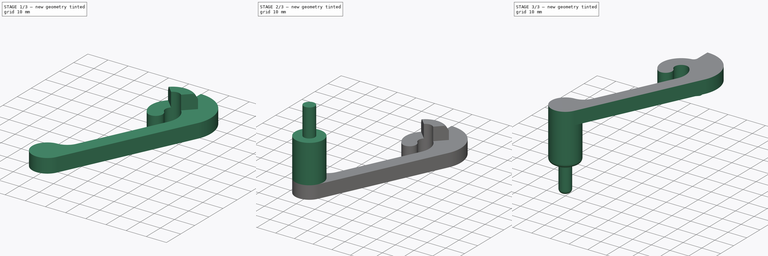
[diagram: build sequence overview — one tinted view per stage of 3, left to right]
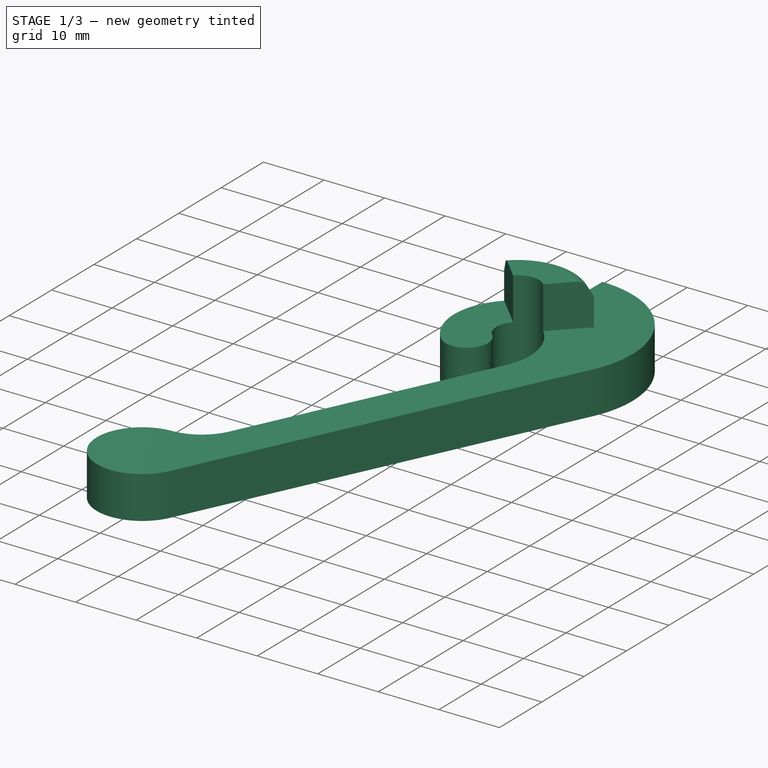
[diagram: stage 1 of 3 — iso view after this stage's code; geometry added in this stage tinted green]
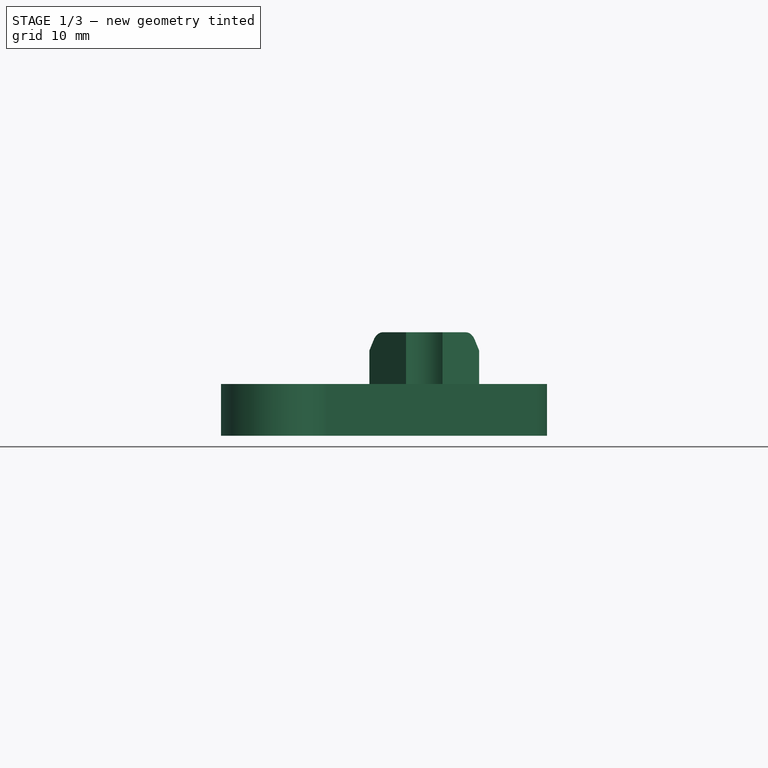
[diagram: stage 1 of 3 — front view after this stage's code; geometry added in this stage tinted green]
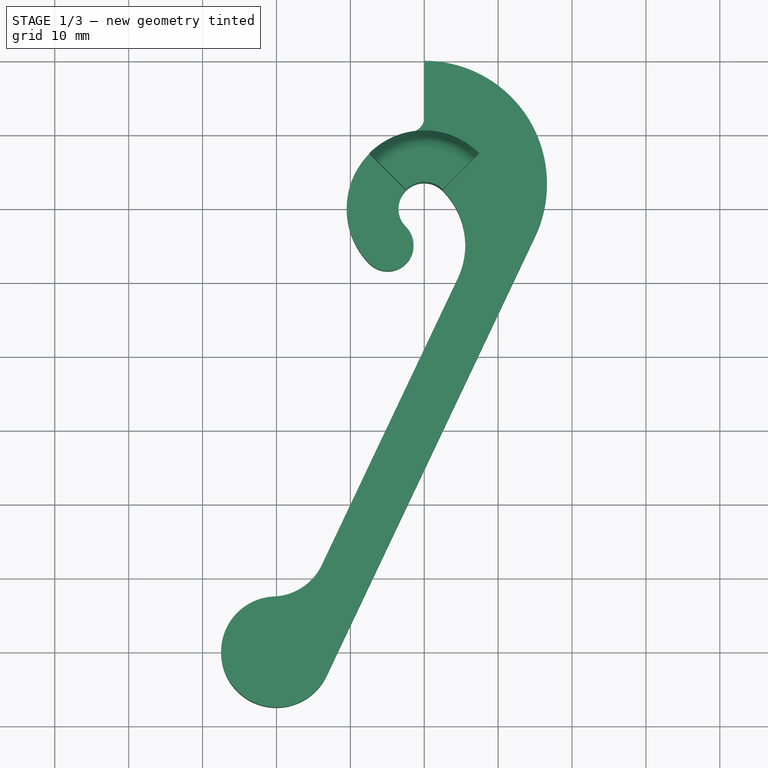
[diagram: stage 1 of 3 — top view after this stage's code; geometry added in this stage tinted green]
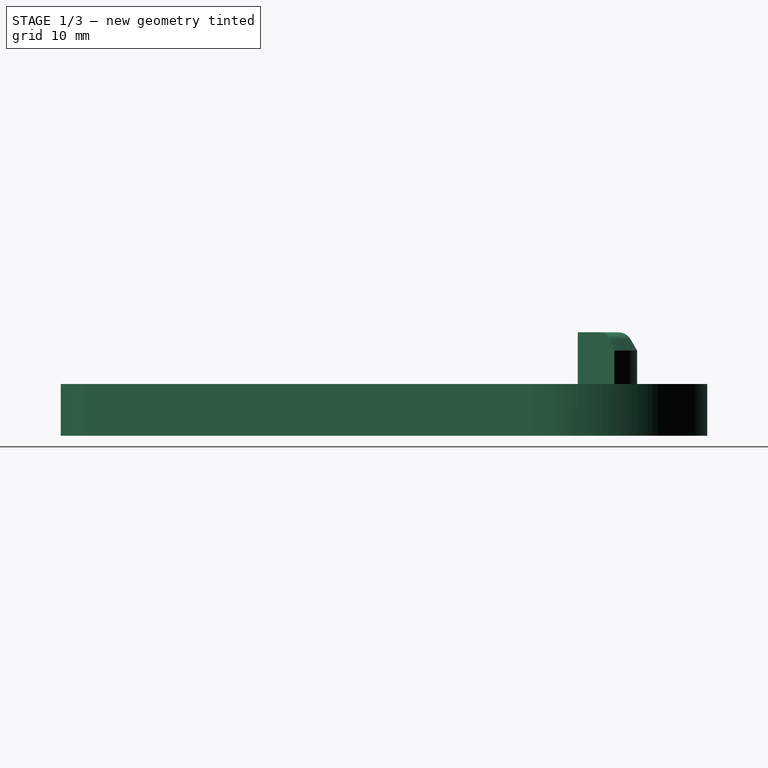
[diagram: stage 1 of 3 — right view after this stage's code; geometry added in this stage tinted green]
FCSTD DOCUMENT  (FreeCAD 0.18R16110 (Git))
Label: WireRackSpoolHangerL
License: All rights reserved
LicenseURL: http://en.wikipedia.org/wiki/All_rights_reserved
objects: Sketcher::SketchObject×4, PartDesign::Pad×3, PartDesign::Revolution×1, PartDesign::Fillet×1, PartDesign::Body×1, Part::Mirroring×1
note: 15 computed .brp shape members not serialized (recipe doc carries the construction recipe); baked Part::Feature solids carry a one-line shape summary decoded from their .brp

FEATURE [Sketcher::SketchObject] Sketch
  MapMode = 5
  Support = -> [XY_Plane]
  sketch-geometry (16):
    g0: ArcOfCircle CenterX=0 CenterY=0 CenterZ=0 NormalX=0 NormalY=0 NormalZ=1 AngleXU=0 Radius=3.5 StartAngle=0.785398 EndAngle=3.92699
    g1: LineSegment [constr] StartX=-2.47487 StartY=-2.47487 StartZ=0 EndX=2.47487 EndY=2.47487 EndZ=0
    g2: ArcOfCircle CenterX=-20 CenterY=-60 CenterZ=0 NormalX=0 NormalY=0 NormalZ=1 AngleXU=0 Radius=7.5 StartAngle=1.61331 EndAngle=5.84018
    g3: LineSegment [constr] StartX=-13.224 StartY=-63.2149 StartZ=0 EndX=-26.776 EndY=-56.7851 EndZ=0
    g4: ArcOfCircle CenterX=-4.94975 CenterY=-4.94975 CenterZ=0 NormalX=0 NormalY=0 NormalZ=1 AngleXU=0 Radius=3.5 StartAngle=3.92699 EndAngle=7.06858
    g5: LineSegment [constr] StartX=0 StartY=0 StartZ=0 EndX=-3.5 EndY=0 EndZ=0
    g6: ArcOfCircle CenterX=-4.94975 CenterY=-4.94975 CenterZ=0 NormalX=0 NormalY=0 NormalZ=1 AngleXU=0 Radius=10.5 StartAngle=5.84018 EndAngle=7.06858
    g7: LineSegment StartX=5.1e-15 StartY=12.339 StartZ=0 EndX=5.1e-15 EndY=20 EndZ=0
    g8: ArcOfCircle CenterX=0 CenterY=3.39496 CenterZ=0 NormalX=0 NormalY=0 NormalZ=1 AngleXU=0 Radius=16.605 StartAngle=5.84018 EndAngle=7.85398
    g9: LineSegment [constr] StartX=0 StartY=0 StartZ=0 EndX=-2.47487 EndY=2.47487 EndZ=0
    g10: LineSegment StartX=-13.224 StartY=-63.2149 StartZ=0 EndX=15.0021 EndY=-3.72283 EndZ=0
    g11: LineSegment [constr] StartX=4.53668 StartY=-9.4506 StartZ=0 EndX=10.861 EndY=-12.4512 EndZ=0
    g12: LineSegment StartX=4.53668 StartY=-9.4506 StartZ=0 EndX=-13.8615 EndY=-48.2285 EndZ=0
    g13: ArcOfCircle CenterX=-20.6376 CenterY=-45.0136 CenterZ=0 NormalX=0 NormalY=0 NormalZ=1 AngleXU=0 Radius=7.5 StartAngle=4.75491 EndAngle=5.84018
    g14: ArcOfCircle CenterX=0 CenterY=0 CenterZ=0 NormalX=0 NormalY=0 NormalZ=1 AngleXU=0 Radius=10.5 StartAngle=1.73149 EndAngle=3.92699
    g15: ArcOfCircle CenterX=-2 CenterY=12.339 CenterZ=0 NormalX=0 NormalY=0 NormalZ=1 AngleXU=0 Radius=2 StartAngle=4.87308 EndAngle=6.28319
  constraints (46):
    c: Coincident(g0,g-1)
    c: PointOnObject(g0,g1)
    c: DistanceX(g2,g0) = 20
    c: DistanceY(g2,g0) = 60
    c: Coincident(g3,g2)
    c: PointOnObject(g2,g3)
    c: Coincident(g5,g0)
    c: PointOnObject(g5,g0)
    c: Horizontal(g5)
    c: Coincident(g1,g0)
    c: Coincident(g1,g0)
    c: Angle(g-1,g1) = 0.785398
    c: Coincident(g6,g4)
    c: PointOnObject(g7,g-2)
    c: DistanceY(g0,g7) = 20
    c: Coincident(g9,g0)
    c: PointOnObject(g9,g0)
    c: Perpendicular(g1,g9)
    c: Distance(g3) = 15
    c: Distance(g1) = 7
    c: Coincident(g6,g0)
    c: Coincident(g4,g0)
    c: PointOnObject(g4,g1)
    c: Distance(g4,g0) = 7
    c: Tangent(g10,g8) = -1.5708
    c: Tangent(g10,g2) = -1.5708
    c: PointOnObject(g11,g10)
    c: Perpendicular(g6,g11)
    c: Perpendicular(g10,g11)
    c: Distance(g11) = 7
    c: Coincident(g6,g11)
    c: Coincident(g12,g6)
    c: Parallel(g12,g10)
    c: PointOnObject(g3,g2)
    c: Tangent(g13,g2) = 1.5708
    c: Tangent(g13,g12) = 1.5708
    c: Equal(g13,g2)
    c: Coincident(g14,g0)
    c: Coincident(g14,g4)
    c: Vertical(g7)
    c: Tangent(g7,g15) = -1.5708
    c: Tangent(g14,g15) = 1.5708
    c: Radius(g15) = 2
    c: PointOnObject(g4,g1)
    c: Coincident(g7,g8)
    c: PointOnObject(g8,g7)
FEATURE [PartDesign::Pad] Pad
  Length = 7
  Length2 = 100
  Profile = -> Sketch
  Type = 0
FEATURE [Sketcher::SketchObject] Sketch001
  MapMode = 5
  Support = -> [XY_Plane]
  sketch-geometry (1):
    g0: Circle CenterX=-20 CenterY=-60 CenterZ=0 NormalX=0 NormalY=0 NormalZ=1 AngleXU=0 Radius=7.5
  constraints (3):
    c: DistanceX(g0,g-1) = 20
    c: DistanceY(g0,g-1) = 60
    c: Radius(g0) = 7.5
FEATURE [Sketcher::SketchObject] Sketch002
  MapMode = 5
  Placement = pos=(0,0,0) rot=(0.57735,0.57735,0.57735;2.0944rad)
  Support = -> [YZ_Plane]
  sketch-geometry (8):
    g0: LineSegment StartX=3.5 StartY=0 StartZ=0 EndX=3.5 EndY=14 EndZ=0
    g1: LineSegment StartX=10.5 StartY=0 StartZ=0 EndX=10.5 EndY=11.5359 EndZ=0
    g2: LineSegment StartX=9.6547 StartY=13 StartZ=0 EndX=10.5 EndY=11.5359 EndZ=0
    g3: LineSegment StartX=3.5 StartY=14 StartZ=0 EndX=7.92265 EndY=14 EndZ=0
    g4: ArcOfCircle CenterX=7.92265 CenterY=12 CenterZ=0 NormalX=0 NormalY=0 NormalZ=1 AngleXU=0 Radius=2 StartAngle=0.523599 EndAngle=1.5708
    g5: LineSegment StartX=10.5 StartY=0 StartZ=0 EndX=3.5 EndY=0 EndZ=0
    g6: GeomPoint X=8.5 Y=15 Z=0
    g7: GeomPoint X=10.5 Y=7 Z=0
  constraints (22):
    c: Vertical(g1)
    c: Coincident(g2,g1)
    c: Angle(g2,g1) = 2.61799
    c: DistanceY(g0,g0) = 14
    c: Coincident(g3,g0)
    c: Horizontal(g3)
    c: Tangent(g4,g3) = 1.5708
    c: Tangent(g4,g2) = 1.5708
    c: Radius(g4) = 2
    c: Coincident(g5,g1)
    c: Coincident(g5,g0)
    c: Horizontal(g5)
    c: DistanceY(g-1,g0) = 0
    c: DistanceX(g-1,g1) = 10.5
    c: DistanceX(g-1,g0) = 3.5
    c: Vertical(g0)
    c: PointOnObject(g6,g2)
    c: DistanceY(g-1,g6) = 15
    c: PointOnObject(g7,g1)
    c: DistanceY(g1,g7) = 7
    c: DistanceY(g7,g0) = 7
    c: DistanceX(g0,g6) = 5
FEATURE [PartDesign::Revolution] Revolution
  Angle = 90
  Axis = (-2e-16,3e-16,1)
  Base = (0,0,0)
  BaseFeature = -> Pad
  Midplane = true
  Profile = -> Sketch002
  ReferenceAxis = -> Sketch002 [V_Axis]
  Reversed = true
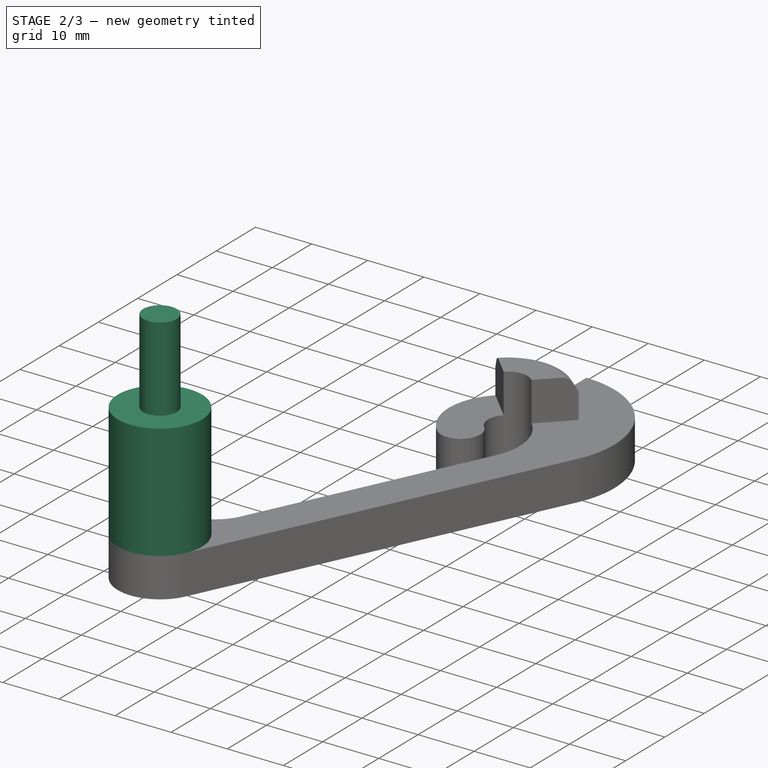
[diagram: stage 2 of 3 — iso view after this stage's code; geometry added in this stage tinted green]
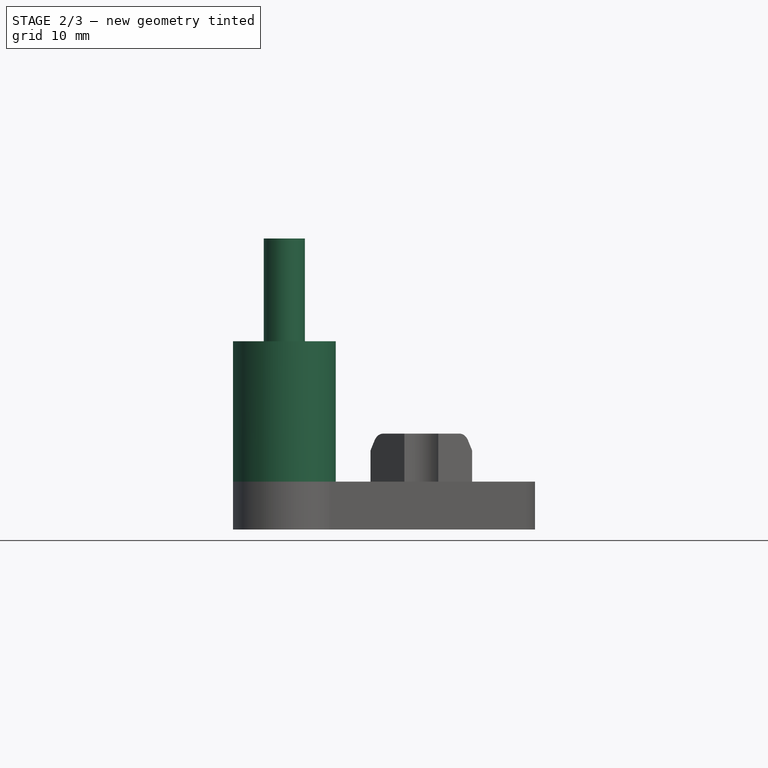
[diagram: stage 2 of 3 — front view after this stage's code; geometry added in this stage tinted green]
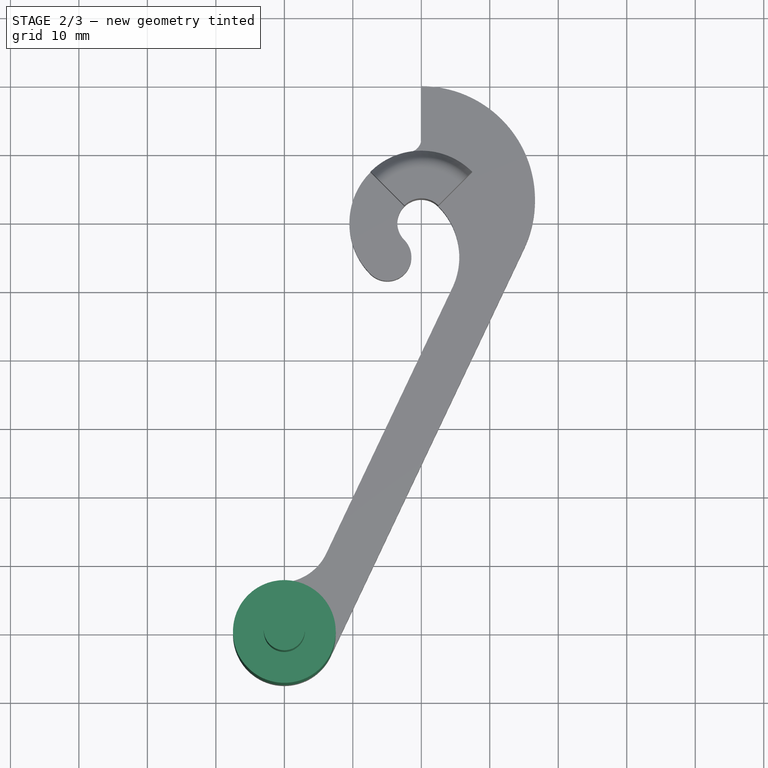
[diagram: stage 2 of 3 — top view after this stage's code; geometry added in this stage tinted green]
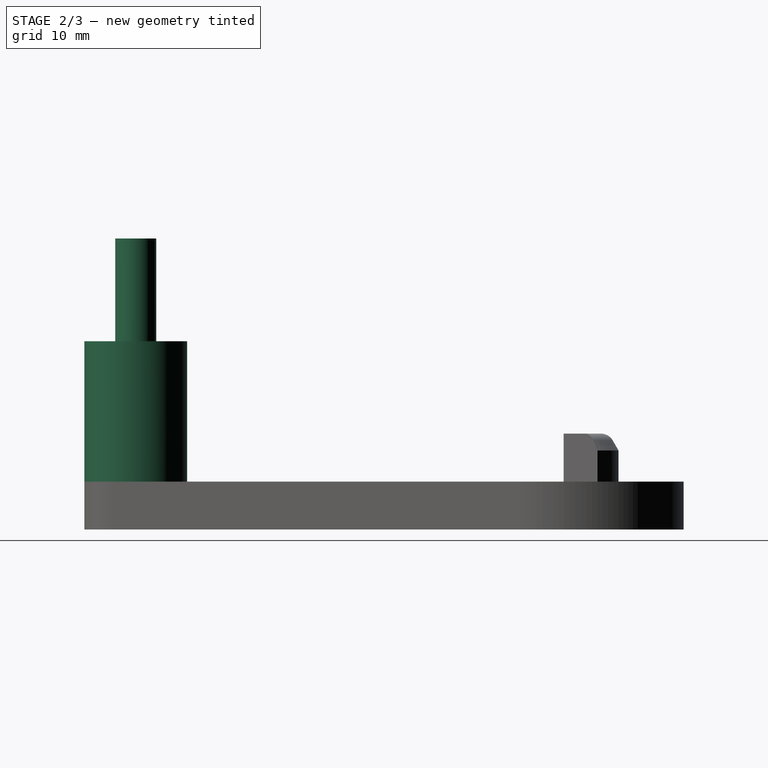
[diagram: stage 2 of 3 — right view after this stage's code; geometry added in this stage tinted green]
FEATURE [PartDesign::Pad] Pad001
  BaseFeature = -> Revolution
  Length = 27.5
  Length2 = 100
  Profile = -> Sketch001
  Type = 0
FEATURE [Sketcher::SketchObject] Sketch003
  MapMode = 5
  Placement = pos=(0,0,27.5) rot=(0,0,1;0rad)
  Support = -> [Pad001]
  sketch-geometry (1):
    g0: Circle CenterX=-20 CenterY=-60 CenterZ=0 NormalX=0 NormalY=0 NormalZ=1 AngleXU=0 Radius=3
  constraints (3):
    c: Radius(g0) = 3
    c: DistanceX(g0,g-1) = 20
    c: DistanceY(g0,g-1) = 60
FEATURE [PartDesign::Pad] Pad002
  BaseFeature = -> Pad001
  Length = 15
  Length2 = 100
  Profile = -> Sketch003
  Type = 0
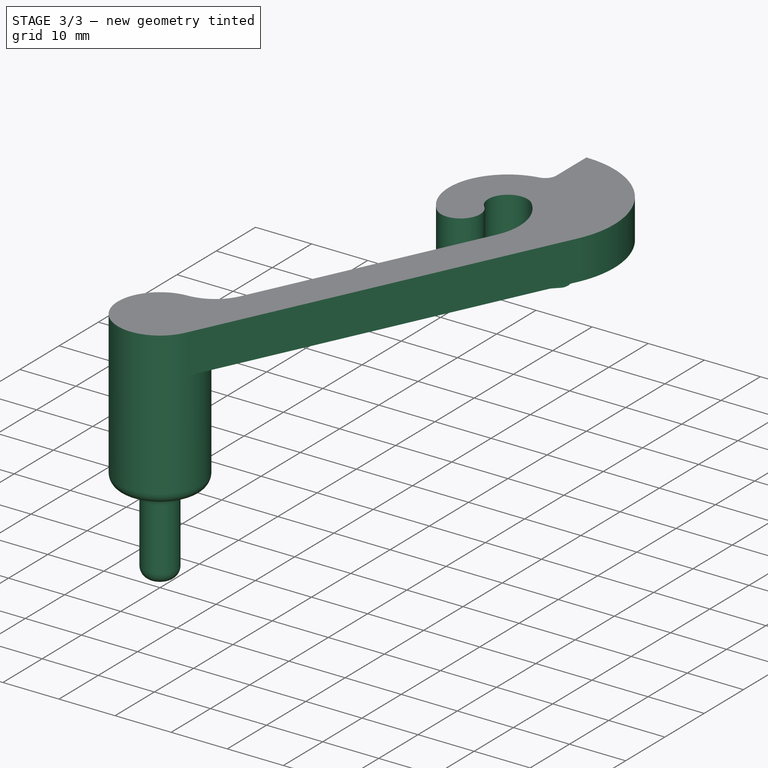
[diagram: stage 3 of 3 — iso view after this stage's code; geometry added in this stage tinted green]
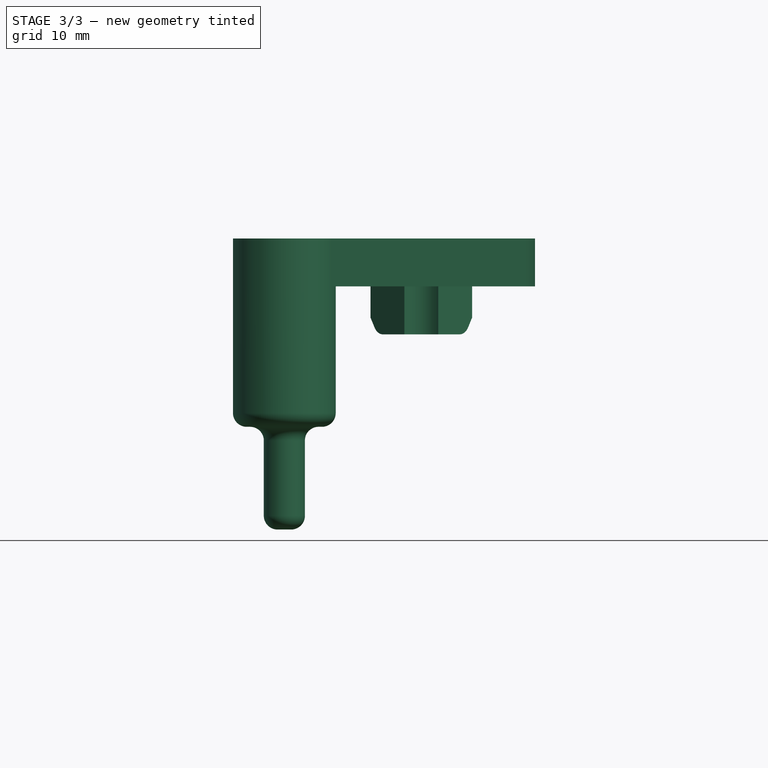
[diagram: stage 3 of 3 — front view after this stage's code; geometry added in this stage tinted green]
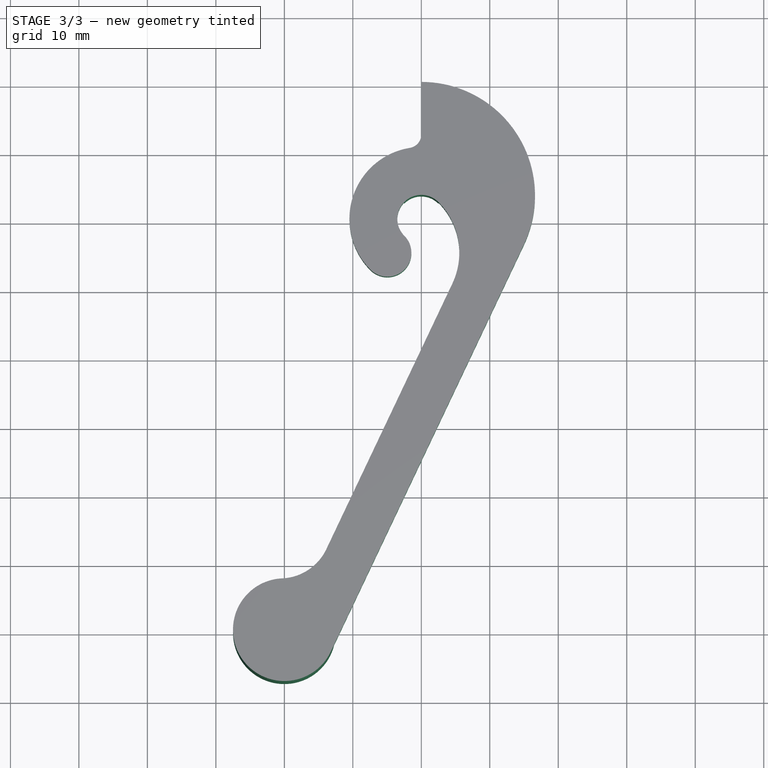
[diagram: stage 3 of 3 — top view after this stage's code; geometry added in this stage tinted green]
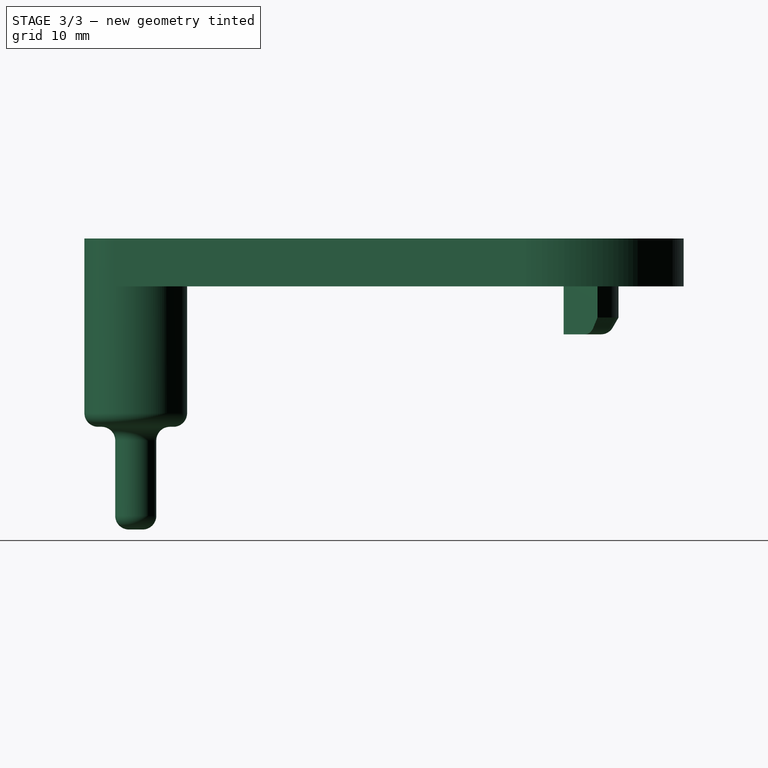
[diagram: stage 3 of 3 — right view after this stage's code; geometry added in this stage tinted green]
FEATURE [PartDesign::Fillet] Fillet
  Base = -> Pad002 [Edge68,Edge65,Edge46]
  BaseFeature = -> Pad002
  Radius = 2
FEATURE [PartDesign::Body] Body
  Group = -> [Sketch,Pad,Revolution,Sketch001,Pad001,Sketch002,Sketch003,Pad002,Fillet]
  Origin = -> Origin
  Tip = -> Fillet
FEATURE [Part::Mirroring] Part__Mirroring  label="Fillet (Mirror #1)"
  Base = (0,0,0)
  Normal = (0,0,1)
  Source = -> Fillet
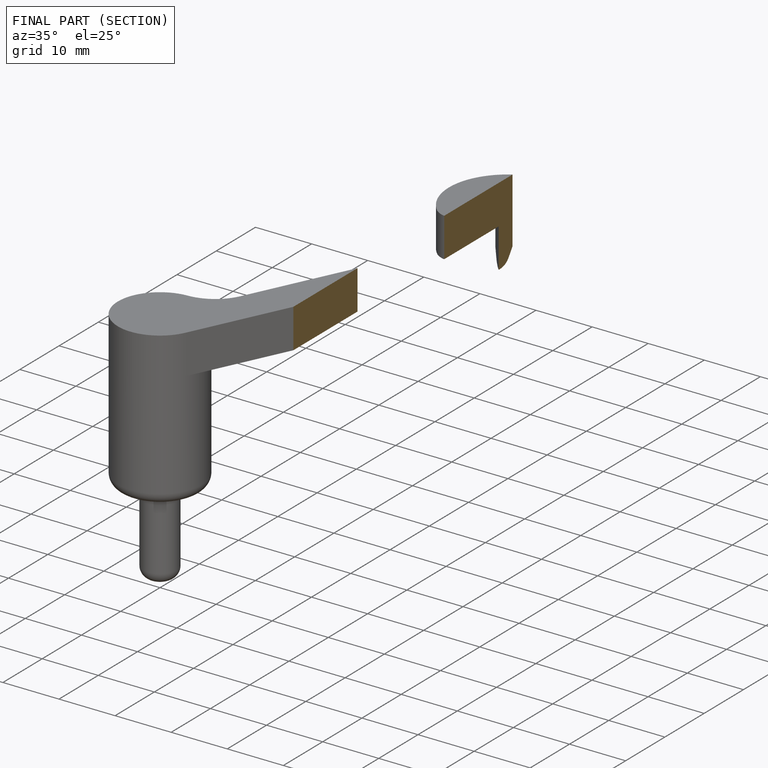
[diagram: finished part — half-section view (interior)]
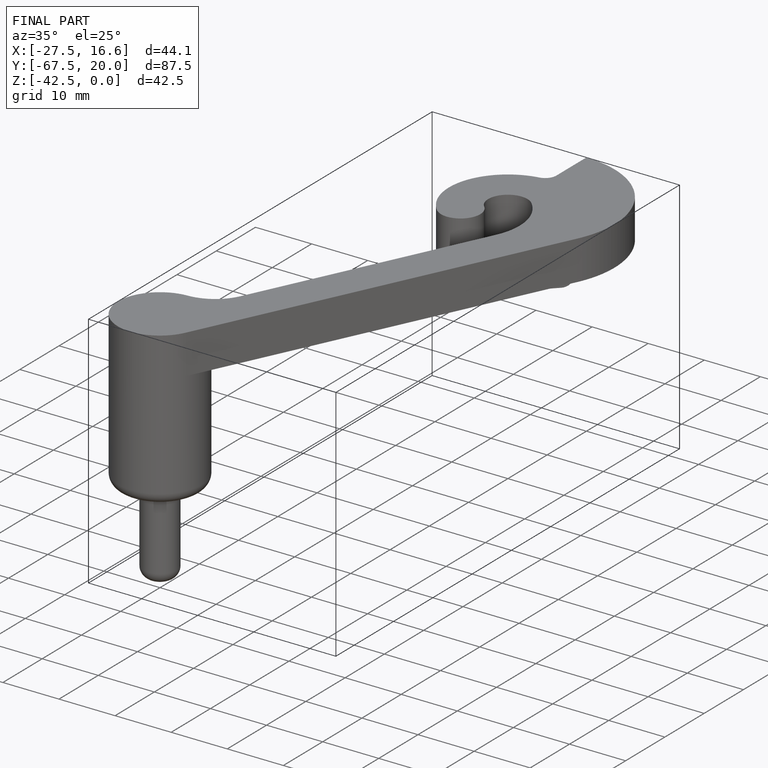
[diagram: finished part — iso view with bounding-box wireframe]
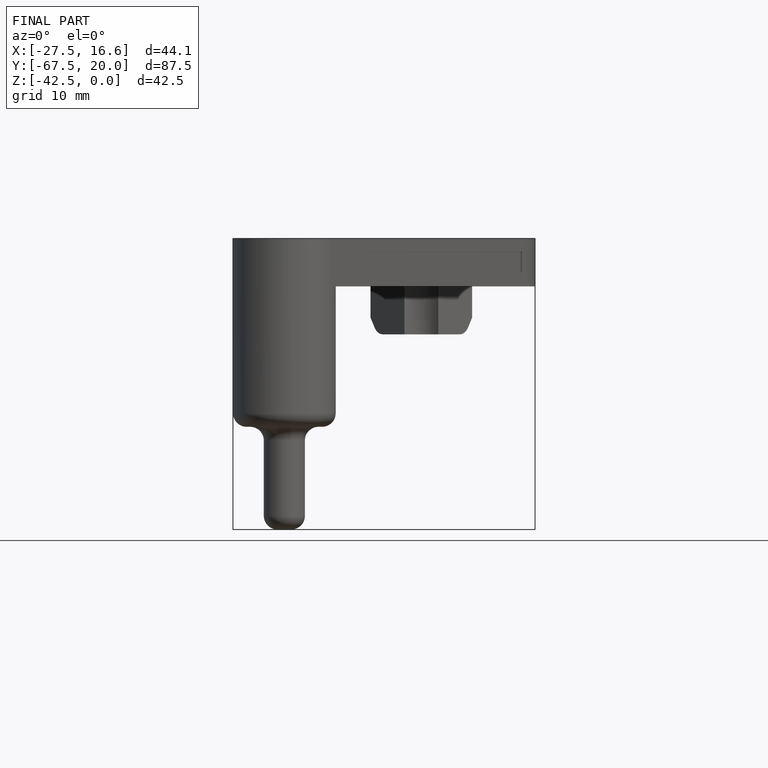
[diagram: finished part — front view with bounding-box wireframe]
